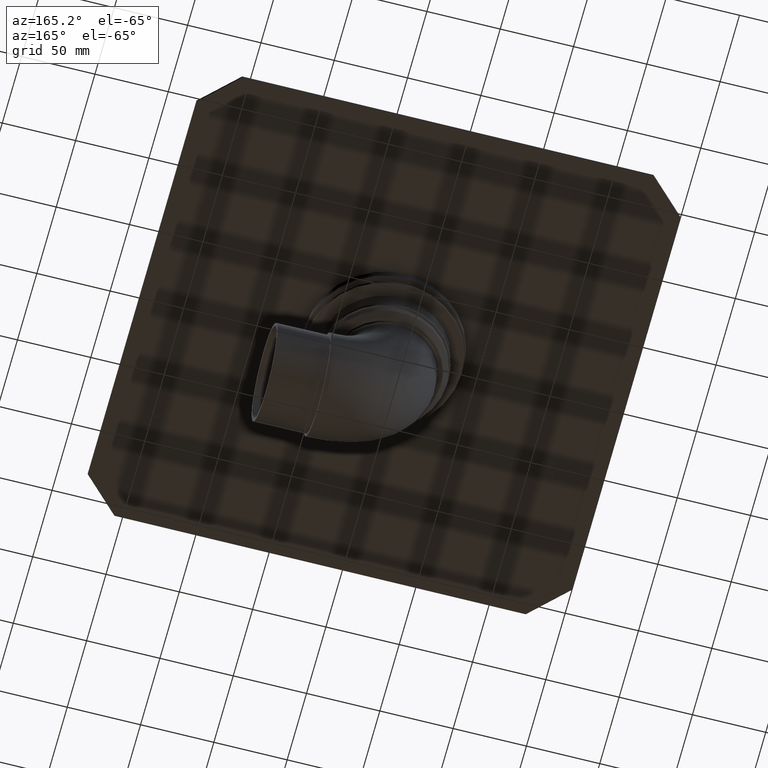
[diagram: clean part render]
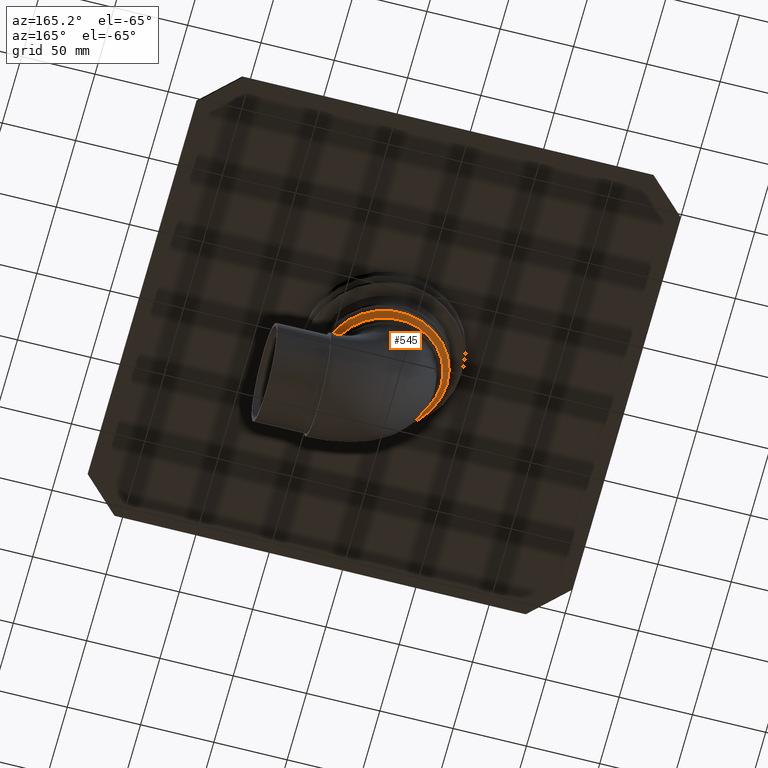
[diagram: same view with one face highlighted and labeled with its STEP entity id]
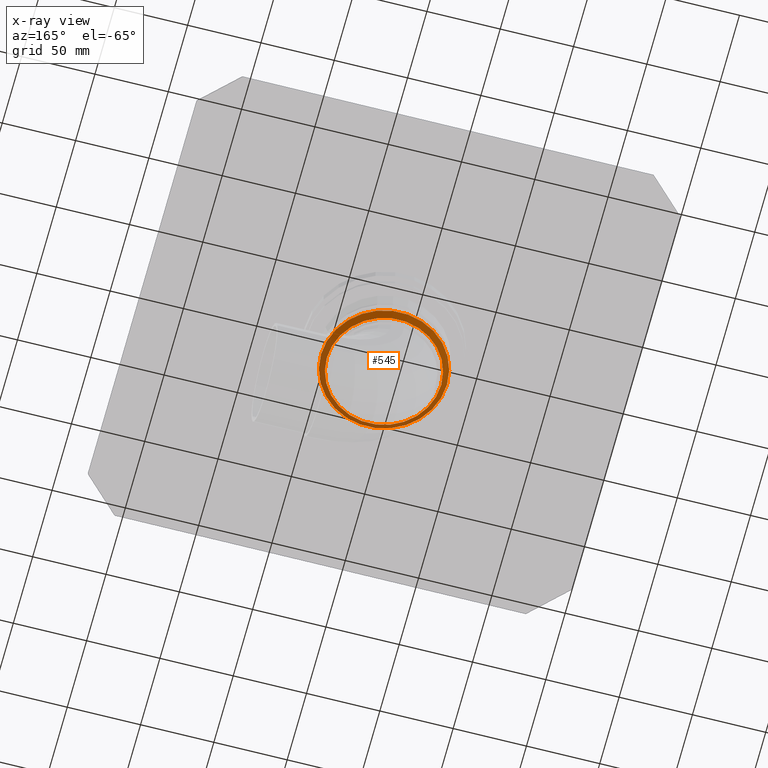
[diagram: x-ray of the same camera — body ghosted, the highlighted face saturated]
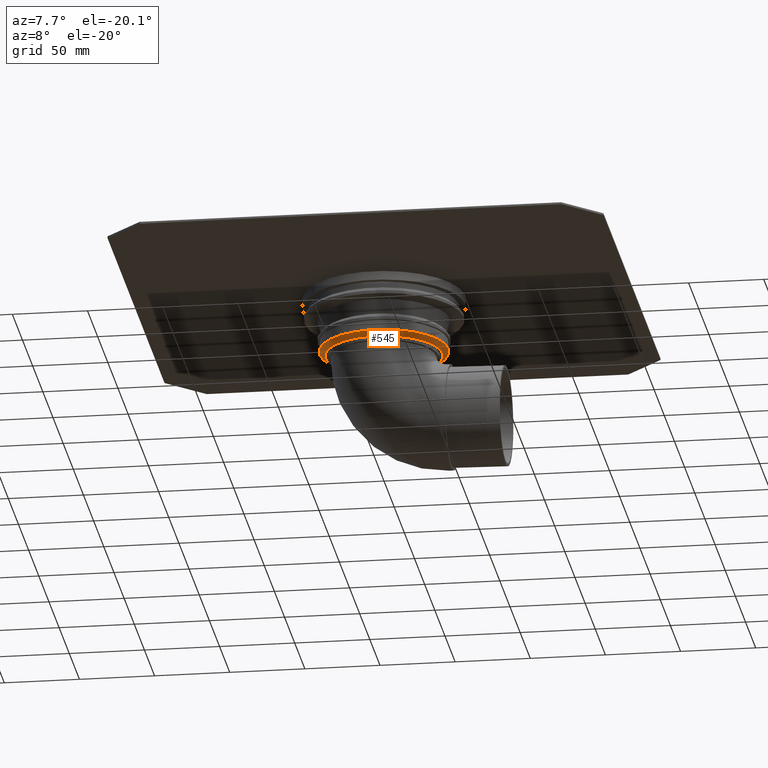
[diagram: same view with one face highlighted and labeled with its STEP entity id]
A machine part, auxiliary view. The second image highlights one B-rep face of the part: STEP entity #545.
The next image is the same camera in x-ray: the body ghosted, the highlighted face saturated — about 34% of this face is hidden behind the body in this view.
A second angle (auxiliary view) of the same face is appended — the face is thin or edge-on in the first view.
In plain terms, the highlighted conical surface has half-angle 53.13 deg.
Its self-contained STEP definition (entity closure, byte-faithful):
#26=CONICAL_SURFACE('',#616,39.,0.927295218001612);
#45=CIRCLE('',#614,39.);
#47=CIRCLE('',#617,43.);
#132=ORIENTED_EDGE('',*,*,#231,.T.);
#133=ORIENTED_EDGE('',*,*,#229,.F.);
#229=EDGE_CURVE('',#279,#279,#45,.T.);
#231=EDGE_CURVE('',#281,#281,#47,.T.);
#279=VERTEX_POINT('',#926);
#281=VERTEX_POINT('',#931);
#380=EDGE_LOOP('',(#132));
#381=EDGE_LOOP('',(#133));
#458=FACE_BOUND('',#380,.T.);
#459=FACE_BOUND('',#381,.T.);
#545=ADVANCED_FACE('',(#458,#459),#26,.T.);
#614=AXIS2_PLACEMENT_3D('',#925,#750,#751);
#616=AXIS2_PLACEMENT_3D('',#929,#754,#755);
#617=AXIS2_PLACEMENT_3D('',#930,#756,#757);
#750=DIRECTION('',(0.,0.,-1.));
#751=DIRECTION('',(-1.,0.,0.));
#754=DIRECTION('',(0.,0.,1.));
#755=DIRECTION('',(1.,0.,0.));
#756=DIRECTION('',(0.,0.,-1.));
#757=DIRECTION('',(-1.,0.,0.));
#925=CARTESIAN_POINT('',(0.,0.,-40.));
#926=CARTESIAN_POINT('',(-39.,0.,-40.));
#929=CARTESIAN_POINT('',(0.,0.,-40.));
#930=CARTESIAN_POINT('',(0.,0.,-37.));
#931=CARTESIAN_POINT('',(-43.,0.,-37.));